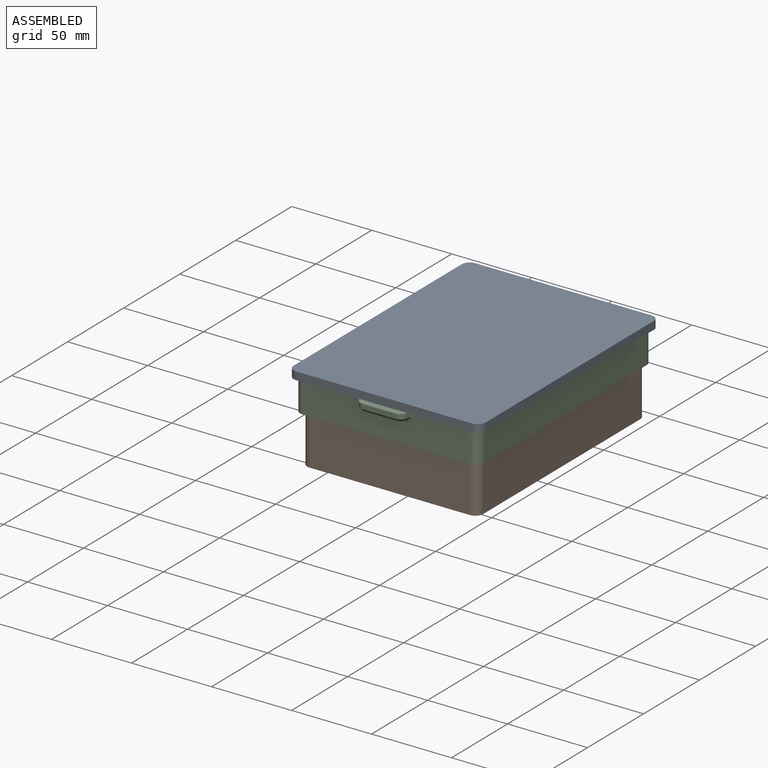
[diagram: assembled view]
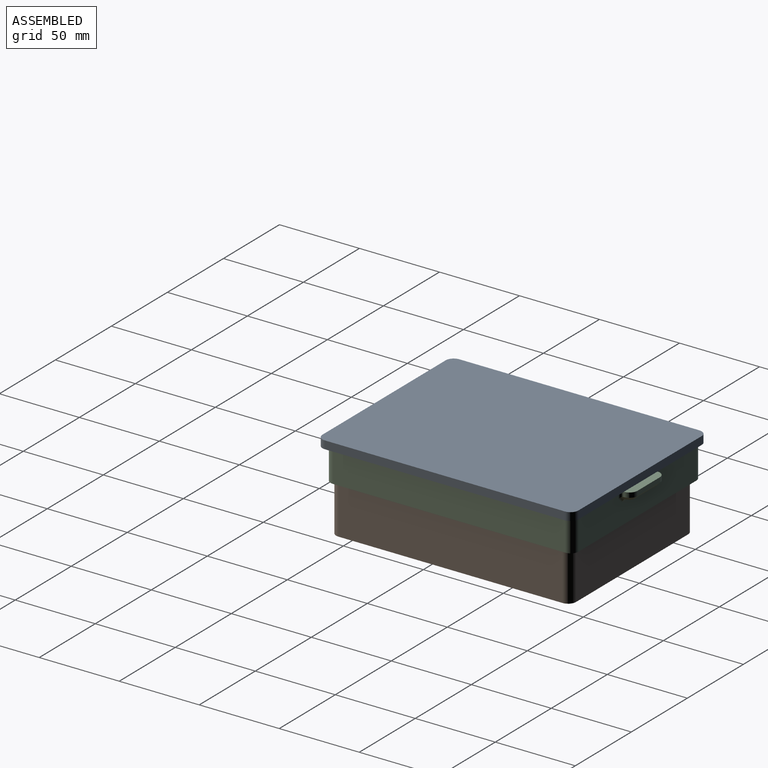
[diagram: assembled view, second angle]
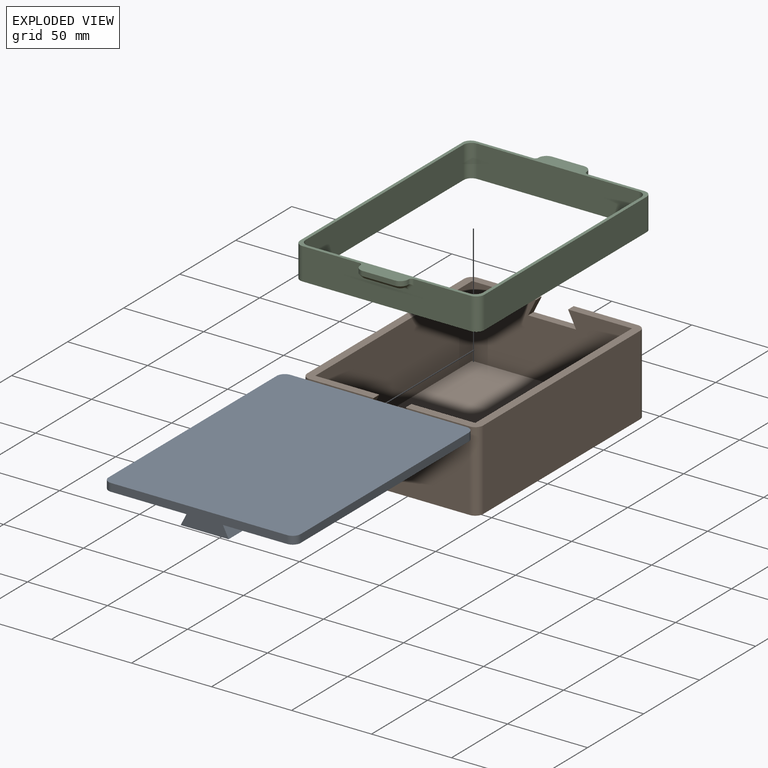
[diagram: exploded view]
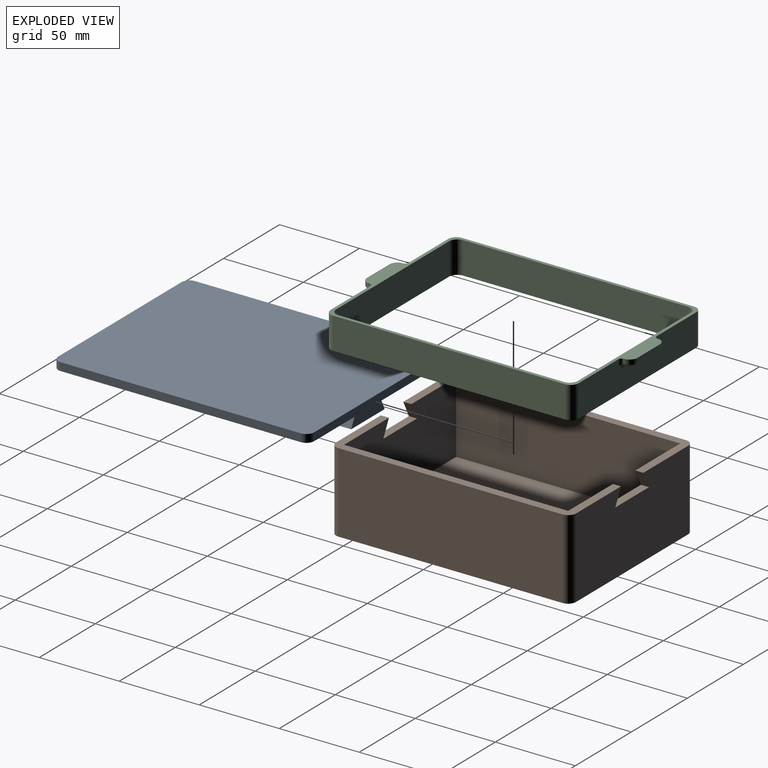
[diagram: exploded view, second angle]
ASSEMBLY  parts=3 mates=2
PART A: 20 faces, bbox 160x120x15 mm
  f0: plane 110x5mm, normal (-1,0,0), area 550mm2, adj f10,f11,f12,f15
  f1: plane 110x5mm, normal (1,0,0), area 550mm2, adj f10,f11,f13,f14
  f2: plane 30x9.95mm, normal (0,-0.89,0.45), area 334.1mm2, adj f4,f11,f17,f19
  f3: plane 30x9.95mm, normal (0,-0.89,0.45), area 334.1mm2, adj f5,f11,f16,f18
  f4: plane 30x29.95mm, normal (0,0,-1), area 898.5mm2, adj f2,f6,f17,f19
  f5: plane 30x29.95mm, normal (0,0,-1), area 898.5mm2, adj f3,f7,f16,f18
  f6: plane 30x9.95mm, normal (0,0.89,0.45), area 334.1mm2, adj f4,f11,f17,f19
  f7: plane 30x9.95mm, normal (0,0.89,0.45), area 334.1mm2, adj f5,f11,f16,f18
  f8: plane 150x5mm, normal (0,-1,0), area 750mm2, adj f10,f11,f12,f13
  f9: plane 150x5mm, normal (0,1,0), area 750mm2, adj f10,f11,f14,f15
  f10: plane 160x120mm, normal (0,0,1), area 19178.5mm2, adj f0,f1,f8,f9,f12,f13,f14,f15
  f11: plane 160x120mm, normal (0,0,-1), area 17981.5mm2, adj f0,f1,f2,f3,f6,f7,f8,f9
  f12: cylinder r=5mm len=5mm, axis (0,0,-1), area 39.3mm2, adj f0,f8,f10,f11
  f13: cylinder r=5mm len=5mm, axis (0,0,1), area 39.3mm2, adj f1,f8,f10,f11
  f14: cylinder r=5mm len=5mm, axis (0,0,-1), area 39.3mm2, adj f1,f9,f10,f11
  f15: cylinder r=5mm len=5mm, axis (0,0,1), area 39.3mm2, adj f0,f9,f10,f11
  f16: plane 29.95x9.95mm, normal (1,0,0), area 248.3mm2, adj f3,f5,f7,f11
  f17: plane 29.95x9.95mm, normal (-1,0,0), area 248.3mm2, adj f2,f4,f6,f11
  f18: plane 29.95x9.95mm, normal (-1,0,0), area 248.3mm2, adj f3,f5,f7,f11
  f19: plane 29.95x9.95mm, normal (1,0,0), area 248.3mm2, adj f2,f4,f6,f11
PART B: 22 faces, bbox 150x110x50 mm
  f0: plane 100x50mm, normal (-1,0,0), area 4750mm2, adj f2,f7,f8,f12,f15,f19,f20,f21
  f1: plane 100x50mm, normal (1,0,0), area 4750mm2, adj f2,f7,f8,f13,f14,f16,f17,f18
  f2: plane 150x45mm, normal (0,0,1), area 1139.3mm2, adj f0,f1,f3,f4,f6,f10,f14,f15
  f3: plane 100x45mm, normal (1,0,0), area 4250mm2, adj f2,f7,f9,f10,f11,f19,f20,f21
  f4: plane 100x45mm, normal (-1,0,0), area 4250mm2, adj f2,f7,f9,f10,f11,f16,f17,f18
  f5: plane 140x50mm, normal (0,-1,0), area 7000mm2, adj f7,f8,f12,f13
  f6: plane 140x50mm, normal (0,1,0), area 7000mm2, adj f2,f8,f14,f15
  f7: plane 150x45mm, normal (0,0,1), area 1139.3mm2, adj f0,f1,f3,f4,f5,f9,f12,f13
  f8: plane 150x110mm, normal (0,0,-1), area 16478.5mm2, adj f0,f1,f5,f6,f12,f13,f14,f15
  f9: plane 140x45mm, normal (0,1,0), area 6300mm2, adj f3,f4,f7,f11
  f10: plane 140x45mm, normal (0,-1,0), area 6300mm2, adj f2,f3,f4,f11
  f11: plane 140x100mm, normal (0,0,1), area 14000mm2, adj f3,f4,f9,f10
  f12: cylinder r=5mm len=50mm, axis (0,0,-1), area 392.7mm2, adj f0,f5,f7,f8
  f13: cylinder r=5mm len=50mm, axis (0,0,1), area 392.7mm2, adj f1,f5,f7,f8
  f14: cylinder r=5mm len=50mm, axis (0,0,-1), area 392.7mm2, adj f1,f2,f6,f8
  f15: cylinder r=5mm len=50mm, axis (0,0,1), area 392.7mm2, adj f0,f2,f6,f8
  f16: plane 10x5mm, normal (0,-0.89,-0.45), area 55.9mm2, adj f1,f2,f4,f17
  f17: plane 30x5mm, normal (0,0,1), area 150mm2, adj f1,f4,f16,f18
  f18: plane 10x5mm, normal (0,0.89,-0.45), area 55.9mm2, adj f1,f4,f7,f17
  f19: plane 10x5mm, normal (0,0.89,-0.45), area 55.9mm2, adj f0,f3,f7,f20
  f20: plane 30x5mm, normal (0,0,1), area 150mm2, adj f0,f3,f19,f21
  f21: plane 10x5mm, normal (0,-0.89,-0.45), area 55.9mm2, adj f0,f2,f3,f20
PART C: 42 faces, bbox 169x115x20 mm
  f0: plane 105x20mm, normal (-1,0,0), area 1872.1mm2, adj f8,f9,f33,f34,f35,f36,f37,f38
  f1: plane 145x20mm, normal (0,-1,0), area 2900mm2, adj f8,f9,f38,f39
  f2: plane 105x20mm, normal (1,0,0), area 1872.1mm2, adj f8,f9,f21,f22,f23,f24,f25,f39
  f3: plane 141x20mm, normal (0,1,0), area 2820mm2, adj f8,f9,f10,f13
  f4: plane 101x20mm, normal (1,0,0), area 2020mm2, adj f8,f9,f10,f11
  f5: plane 141x20mm, normal (0,-1,0), area 2820mm2, adj f8,f9,f11,f12
  f6: plane 101x20mm, normal (-1,0,0), area 2020mm2, adj f8,f9,f12,f13
  f7: plane 145x20mm, normal (0,1,0), area 2900mm2, adj f8,f9,f40,f41
  f8: plane 169x115mm, normal (0,0,1), area 1466mm2, adj f0,f1,f2,f3,f4,f5,f6,f7
  f9: plane 155x115mm, normal (0,0,-1), area 1064mm2, adj f0,f1,f2,f3,f4,f5,f6,f7
  f10: cylinder r=5mm len=20mm, axis (0,0,1), area 157.1mm2, adj f3,f4,f8,f9
  f11: cylinder r=5mm len=20mm, axis (0,0,-1), area 157.1mm2, adj f4,f5,f8,f9
  f12: cylinder r=5mm len=20mm, axis (0,0,1), area 157.1mm2, adj f5,f6,f8,f9
  f13: cylinder r=5mm len=20mm, axis (0,0,-1), area 157.1mm2, adj f3,f6,f8,f9
  f14: plane 20x3mm, normal (1,0,0), area 60mm2, adj f8,f16,f17,f19
  f15: plane 26x3mm, normal (0,0,-1), area 74.1mm2, adj f18,f19,f20,f23
  f16: cylinder r=5mm len=5mm, axis (0,0,-1), area 23.6mm2, adj f8,f14,f18,f24
  f17: cylinder r=5mm len=5mm, axis (0,0,1), area 23.6mm2, adj f8,f14,f20,f21
  f18: cone r=3mm half-angle=45deg, axis (0,0,1), area 17.8mm2, adj f15,f16,f19,f25
  f19: plane 20x2mm, normal (0.71,0,-0.71), area 56.6mm2, adj f14,f15,f18,f20
  f20: cone r=3mm half-angle=45deg, axis (0,0,1), area 17.8mm2, adj f15,f17,f19,f22
  f21: cylinder r=2mm len=3.83mm, axis (0,0,1), area 10.4mm2, adj f2,f8,f17,f22
  f22: cylinder r=2mm len=4.59mm, axis (0,-0.71,-0.71), area 10.8mm2, adj f2,f20,f21,f23
  f23: cylinder r=2mm len=27.66mm, axis (0,-1,0), area 83.6mm2, adj f2,f15,f22,f25
  f24: cylinder r=2mm len=3.83mm, axis (0,0,-1), area 10.4mm2, adj f2,f8,f16,f25
  f25: cylinder r=2mm len=4.59mm, axis (0,0.71,-0.71), area 10.8mm2, adj f2,f18,f23,f24
  f26: plane 20x3mm, normal (-1,0,0), area 60mm2, adj f8,f28,f29,f31
  f27: plane 26x3mm, normal (0,0,-1), area 74.1mm2, adj f30,f31,f32,f35
  f28: cylinder r=5mm len=5mm, axis (0,0,-1), area 23.6mm2, adj f8,f26,f30,f36
  f29: cylinder r=5mm len=5mm, axis (0,0,1), area 23.6mm2, adj f8,f26,f32,f33
  f30: cone r=3mm half-angle=45deg, axis (0,0,1), area 17.8mm2, adj f27,f28,f31,f37
  f31: plane 20x2mm, normal (-0.71,0,-0.71), area 56.6mm2, adj f26,f27,f30,f32
  f32: cone r=3mm half-angle=45deg, axis (0,0,1), area 17.8mm2, adj f27,f29,f31,f34
  f33: cylinder r=2mm len=3.83mm, axis (0,0,1), area 10.4mm2, adj f0,f8,f29,f34
  f34: cylinder r=2mm len=4.59mm, axis (0,-0.71,-0.71), area 10.8mm2, adj f0,f32,f33,f35
  f35: cylinder r=2mm len=27.66mm, axis (0,-1,0), area 83.6mm2, adj f0,f27,f34,f37
  f36: cylinder r=2mm len=3.83mm, axis (0,0,-1), area 10.4mm2, adj f0,f8,f28,f37
  f37: cylinder r=2mm len=4.59mm, axis (0,0.71,-0.71), area 10.8mm2, adj f0,f30,f35,f36
  f38: cylinder r=5mm len=20mm, axis (0,0,-1), area 157.1mm2, adj f0,f1,f8,f9
  f39: cylinder r=5mm len=20mm, axis (0,0,1), area 157.1mm2, adj f1,f2,f8,f9
  f40: cylinder r=5mm len=20mm, axis (0,0,-1), area 157.1mm2, adj f2,f7,f8,f9
  f41: cylinder r=5mm len=20mm, axis (0,0,1), area 157.1mm2, adj f0,f7,f8,f9
PLACE A rot(axis=(0,0,1),90deg) t=(-7.08,-84.47,120.1)mm
PLACE B rot(axis=(0,0,1),90deg) t=(-7.1,-84.47,70.15)mm fixed
PLACE C rot(axis=(0,0,-1),90deg) t=(-7.6,-83.97,100.15)mm
MATE slider A.f18 <-> B.f0  axis (0,-1,0) through (7.9,-159.47,110.15)mm
MATE slider B.f7 <-> C.f8  axis (0,0,1) through (47.9,-154.47,120.15)mm
